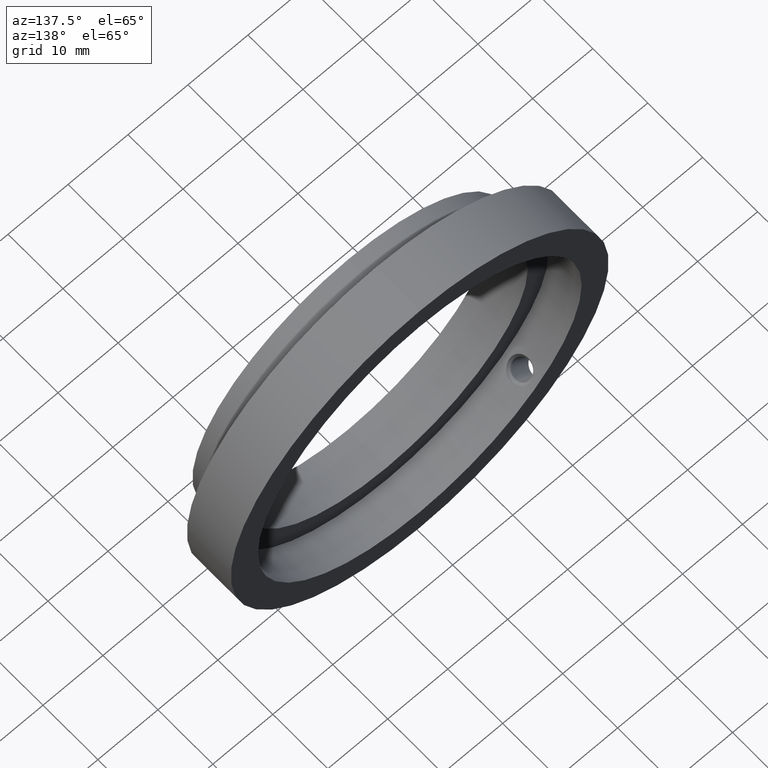
[diagram: clean part render]
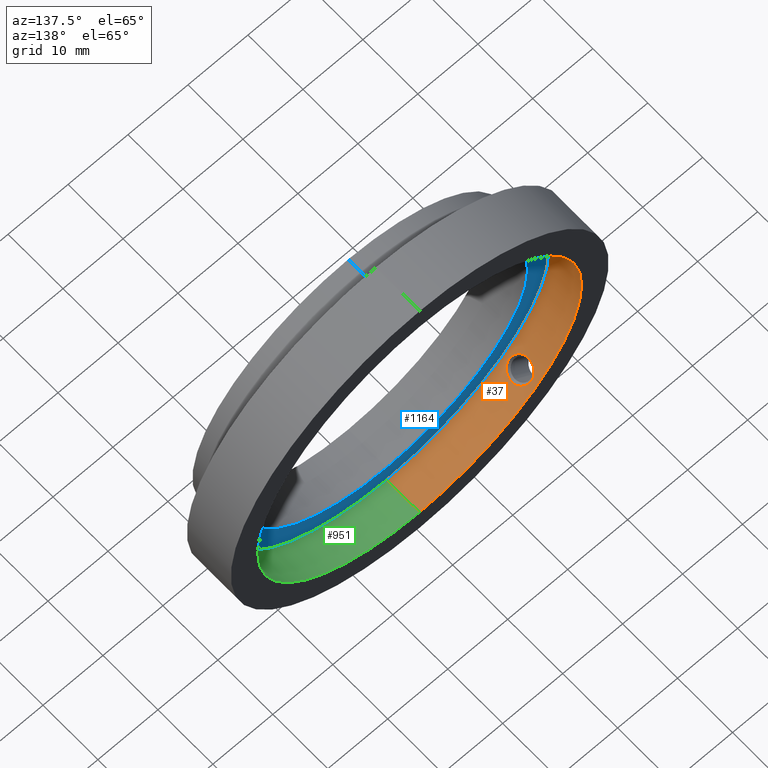
[diagram: same view with three faces highlighted in distinct colors, each labeled with its STEP entity id]
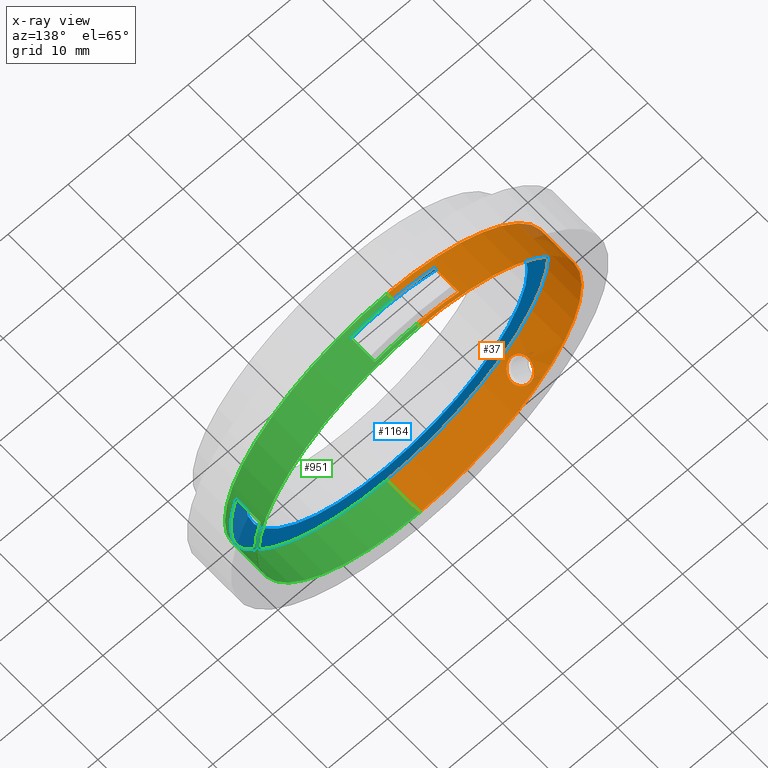
[diagram: x-ray of the same camera — body ghosted, the three highlighted faces saturated]
A machine part, auxiliary view with three faces highlighted in distinct colors.
The next image is the same camera in x-ray (body ghosted, the three faces saturated) — at least one of them is partly hidden behind the body in this view.
Their STEP definitions:

[orange] entity #37 — the highlighted cylindrical surface (partial cylindrical patch) has radius 27 mm, axis along (-0, -1, -0).
#10 = EDGE_CURVE ( 'NONE', #1100, #213, #482, .T. ) ;
#14 = CARTESIAN_POINT ( 'NONE',  ( -18.43756273570379600, -0.3413522826750845500, -19.72473102053701100 ) ) ;
#15 = CARTESIAN_POINT ( 'NONE',  ( -19.61499938240274300, -1.028278688524597600, -18.55450657526573000 ) ) ;
#19 = ORIENTED_EDGE ( 'NONE', *, *, #530, .T. ) ;
#37 = ADVANCED_FACE ( 'NONE', ( #643, #404 ), #783, .F. ) ;
#69 = CIRCLE ( 'NONE', #206, 27.00000000000000000 ) ;
#82 = CARTESIAN_POINT ( 'NONE',  ( -20.42272245516496600, 2.522885470051783800, -17.66129570103324300 ) ) ;
#93 = EDGE_LOOP ( 'NONE', ( #671, #194, #19 ) ) ;
#94 = CARTESIAN_POINT ( 'NONE',  ( -18.14581956868406500, 1.649839809700635900, -19.99329457327145200 ) ) ;
#98 = LINE ( 'NONE', #753, #429 ) ;
#100 = CARTESIAN_POINT ( 'NONE',  ( -19.88129231376597200, -0.9636634440262563700, -18.26885262491438400 ) ) ;
#101 = CARTESIAN_POINT ( 'NONE',  ( -18.07851186811486600, 0.7312749591979561500, -20.05412858065140800 ) ) ;
#104 = CARTESIAN_POINT ( 'NONE',  ( -18.64754504214145900, -0.6118819902721985800, -19.52642533546312000 ) ) ;
#105 = VERTEX_POINT ( 'NONE', #889 ) ;
#108 = CARTESIAN_POINT ( 'NONE',  ( -20.80066380358232400, 1.648354821357099300, -17.21438270783437500 ) ) ;
#142 = ORIENTED_EDGE ( 'NONE', *, *, #280, .T. ) ;
#143 = DIRECTION ( 'NONE',  ( -0.0000000000000000000, -1.000000000000000000, -0.0000000000000000000 ) ) ;
#163 = CARTESIAN_POINT ( 'NONE',  ( -20.54604222648775300, 2.333781464301626600, -17.51767984487150900 ) ) ;
#168 = CARTESIAN_POINT ( 'NONE',  ( -20.20973129145297900, -0.7608039659778265100, -17.90471707675759600 ) ) ;
#173 = VERTEX_POINT ( 'NONE', #505 ) ;
#188 = CARTESIAN_POINT ( 'NONE',  ( -18.89131997628609500, -0.8228567284003703900, -19.29074537372459700 ) ) ;
#190 = CARTESIAN_POINT ( 'NONE',  ( -19.88242750885899900, 2.956681655342698900, -18.26761957178829500 ) ) ;
#194 = ORIENTED_EDGE ( 'NONE', *, *, #1135, .T. ) ;
#202 = CARTESIAN_POINT ( 'NONE',  ( -18.07849138964781900, 1.262043023565867500, -20.05414708760055800 ) ) ;
#206 = AXIS2_PLACEMENT_3D ( 'NONE', #806, #885, #324 ) ;
#209 = CARTESIAN_POINT ( 'NONE',  ( 3.306546357697853700E-015, -2.003278688524599000, 27.00000000000000000 ) ) ;
#211 = CARTESIAN_POINT ( 'NONE',  ( -6.995128393389915500, 3.496721311475398800, 26.07811685609200900 ) ) ;
#213 = VERTEX_POINT ( 'NONE', #966 ) ;
#241 = DIRECTION ( 'NONE',  ( 0.0000000000000000000, 0.0000000000000000000, -1.000000000000000000 ) ) ;
#246 = CIRCLE ( 'NONE', #764, 27.00000000000000000 ) ;
#257 = CARTESIAN_POINT ( 'NONE',  ( -20.42346485706337900, -0.5283028989654656700, -17.66043105384924100 ) ) ;
#260 = VERTEX_POINT ( 'NONE', #503 ) ;
#268 = CARTESIAN_POINT ( 'NONE',  ( -18.26692766306743800, -0.01729834514992693200, -19.88277537441360800 ) ) ;
#276 = CIRCLE ( 'NONE', #928, 27.00000000000000000 ) ;
#278 = CARTESIAN_POINT ( 'NONE',  ( -19.96762165828922900, 2.918388486661437600, -18.17440912233346100 ) ) ;
#279 = DIRECTION ( 'NONE',  ( -0.0000000000000000000, -1.000000000000000000, -0.0000000000000000000 ) ) ;
#280 = EDGE_CURVE ( 'NONE', #715, #260, #477, .T. ) ;
#287 = CARTESIAN_POINT ( 'NONE',  ( 3.306546357697853700E-015, -1.003278688524599900, 27.00000000000000000 ) ) ;
#300 = DIRECTION ( 'NONE',  ( 0.0000000000000000000, 1.000000000000000000, 0.0000000000000000000 ) ) ;
#324 = DIRECTION ( 'NONE',  ( -1.000000000000000000, 0.0000000000000000000, -3.491481338843133400E-015 ) ) ;
#327 = DIRECTION ( 'NONE',  ( -0.0000000000000000000, -1.000000000000000000, -0.0000000000000000000 ) ) ;
#338 = DIRECTION ( 'NONE',  ( -0.0000000000000000000, -1.000000000000000000, -0.0000000000000000000 ) ) ;
#351 = DIRECTION ( 'NONE',  ( -0.0000000000000000000, -1.000000000000000000, -0.0000000000000000000 ) ) ;
#372 = CARTESIAN_POINT ( 'NONE',  ( -18.80682450981193200, -0.7598220626269139900, -19.37306311188933700 ) ) ;
#404 = FACE_OUTER_BOUND ( 'NONE', #714, .T. ) ;
#411 = CARTESIAN_POINT ( 'NONE',  ( -6.995128393389916400, 0.0000000000000000000, 26.07811685609201300 ) ) ;
#429 = VECTOR ( 'NONE', #1141, 1000.000000000000000 ) ;
#440 = ORIENTED_EDGE ( 'NONE', *, *, #10, .T. ) ;
#450 = CARTESIAN_POINT ( 'NONE',  ( 0.0000000000000000000, 0.0000000000000000000, -27.00000000000000000 ) ) ;
#454 = CARTESIAN_POINT ( 'NONE',  ( -20.35558628879571700, 2.606710642768852400, -17.73871896068675700 ) ) ;
#460 = VERTEX_POINT ( 'NONE', #1205 ) ;
#462 = CARTESIAN_POINT ( 'NONE',  ( -18.11677156262725700, 0.4726023424466318000, -20.01957173973633200 ) ) ;
#464 = B_SPLINE_CURVE_WITH_KNOTS ( 'NONE', 3,
 ( #1031, #15, #1002, #100, #838, #723, #168, #480, #257, #474, #745, #540, #1033, #665, #1109, #912, #108, #752, #934, #1104, #163, #82, #454, #813, #659, #278, #190, #551, #749, #1125 ),
 .UNSPECIFIED., .F., .F.,
 ( 4, 2, 2, 2, 2, 2, 2, 2, 2, 2, 2, 2, 2, 2, 4 ),
 ( 0.0000000000000000000, 0.0003958309842034941600, 0.0007916619684069883200, 0.001187492952610482300, 0.001583323936813976600, 0.002374985905220969800, 0.003166647873627962800, 0.003562478857831459500, 0.003958309842034956700, 0.004354140826238452900, 0.004749971810441949200, 0.005145802794645445500, 0.005541633778848941700, 0.005937464763052438000, 0.006333295747255934300 ),
 .UNSPECIFIED. ) ;
#467 = AXIS2_PLACEMENT_3D ( 'NONE', #893, #327, #1176 ) ;
#468 = B_SPLINE_CURVE_WITH_KNOTS ( 'NONE', 3,
 ( #832, #747, #101, #462, #1120, #1117, #268, #922, #14, #652, #104, #372, #188, #562, #653, #557 ),
 .UNSPECIFIED., .F., .F.,
 ( 4, 2, 2, 2, 2, 2, 2, 4 ),
 ( 0.009500814466999022600, 0.009896353985993835300, 0.01029189350498864800, 0.01068743302398346100, 0.01108297254297827300, 0.01147851206197308600, 0.01187405158096790100, 0.01266513061895752600 ),
 .UNSPECIFIED. ) ;
#474 = CARTESIAN_POINT ( 'NONE',  ( -20.60619522066838300, -0.2481006047059144100, -17.44762693404365800 ) ) ;
#477 = LINE ( 'NONE', #411, #848 ) ;
#480 = CARTESIAN_POINT ( 'NONE',  ( -20.35514209676983200, -0.6138226320697903700, -17.73923117532936200 ) ) ;
#482 = CIRCLE ( 'NONE', #467, 27.00000000000000000 ) ;
#503 = CARTESIAN_POINT ( 'NONE',  ( -6.995128393389915500, -1.003278688524599900, 26.07811685609200900 ) ) ;
#505 = CARTESIAN_POINT ( 'NONE',  ( -19.52253942350209900, 3.021721311475400000, -18.65128559799045100 ) ) ;
#528 = DIRECTION ( 'NONE',  ( 0.0000000000000000000, 0.0000000000000000000, -1.000000000000000000 ) ) ;
#530 = EDGE_CURVE ( 'NONE', #105, #798, #468, .T. ) ;
#539 = EDGE_CURVE ( 'NONE', #697, #1100, #748, .T. ) ;
#540 = CARTESIAN_POINT ( 'NONE',  ( -20.83258733153620700, 0.4651580394335725900, -17.17595855673281600 ) ) ;
#551 = CARTESIAN_POINT ( 'NONE',  ( -19.70587056149852100, 3.008473844565641400, -18.45793904741485400 ) ) ;
#557 = CARTESIAN_POINT ( 'NONE',  ( -19.52253942350209900, -1.028278688524598000, -18.65128559799045100 ) ) ;
#562 = CARTESIAN_POINT ( 'NONE',  ( -19.15116212286357100, -0.9745094618251216600, -19.03397749880483800 ) ) ;
#566 = CARTESIAN_POINT ( 'NONE',  ( -18.11680406037170200, 1.521046178321012700, -20.01954237675743500 ) ) ;
#587 = CARTESIAN_POINT ( 'NONE',  ( -18.64247673037171200, 2.615758134180294500, -19.53184744298808100 ) ) ;
#589 = VECTOR ( 'NONE', #279, 1000.000000000000000 ) ;
#593 = CARTESIAN_POINT ( 'NONE',  ( -18.22114349694770400, 1.894970198810651100, -19.92467127398803900 ) ) ;
#601 = VERTEX_POINT ( 'NONE', #768 ) ;
#603 = CARTESIAN_POINT ( 'NONE',  ( -18.06870843042708300, 0.9967213114754008800, -20.06294533851431400 ) ) ;
#643 = FACE_BOUND ( 'NONE', #93, .T. ) ;
#645 = ORIENTED_EDGE ( 'NONE', *, *, #1161, .F. ) ;
#652 = CARTESIAN_POINT ( 'NONE',  ( -18.57366271186960200, -0.5281095836508068500, -19.59662692738863000 ) ) ;
#653 = CARTESIAN_POINT ( 'NONE',  ( -19.33775566917609000, -1.028278688524598900, -18.84470111938704700 ) ) ;
#659 = CARTESIAN_POINT ( 'NONE',  ( -20.13201315993424200, 2.816759742194713000, -17.99214016627188100 ) ) ;
#665 = CARTESIAN_POINT ( 'NONE',  ( -20.86643138693923300, 1.128123300741518600, -17.13452774885909600 ) ) ;
#667 = CARTESIAN_POINT ( 'NONE',  ( -19.33986552271570500, 3.021721311475400500, -18.84249270867517700 ) ) ;
#671 = ORIENTED_EDGE ( 'NONE', *, *, #942, .T. ) ;
#678 = DIRECTION ( 'NONE',  ( -0.0000000000000000000, -1.000000000000000000, -0.0000000000000000000 ) ) ;
#691 = AXIS2_PLACEMENT_3D ( 'NONE', #1189, #143, #528 ) ;
#695 = EDGE_CURVE ( 'NONE', #460, #1010, #98, .T. ) ;
#697 = VERTEX_POINT ( 'NONE', #287 ) ;
#714 = EDGE_LOOP ( 'NONE', ( #645, #1170, #902, #142, #1204, #839, #440, #1006 ) ) ;
#715 = VERTEX_POINT ( 'NONE', #211 ) ;
#719 = CARTESIAN_POINT ( 'NONE',  ( -19.52253942350209900, -1.028278688524598000, -18.65128559799045100 ) ) ;
#723 = CARTESIAN_POINT ( 'NONE',  ( -20.13241091991258400, -0.8230193167466646200, -17.99169468231389500 ) ) ;
#745 = CARTESIAN_POINT ( 'NONE',  ( -20.70321077040078700, -0.02221168100783447000, -17.33168517672321900 ) ) ;
#747 = CARTESIAN_POINT ( 'NONE',  ( -18.06870843042708000, 0.8631151499794090800, -20.06294533851431400 ) ) ;
#748 = LINE ( 'NONE', #1211, #589 ) ;
#749 = CARTESIAN_POINT ( 'NONE',  ( -19.61385126262195700, 3.021721311475400500, -18.55570832693941000 ) ) ;
#752 = CARTESIAN_POINT ( 'NONE',  ( -20.73566355796944500, 1.893588790233714100, -17.29262396202916100 ) ) ;
#753 = CARTESIAN_POINT ( 'NONE',  ( 3.306546357697853700E-015, 0.0000000000000000000, 27.00000000000000000 ) ) ;
#757 = CARTESIAN_POINT ( 'NONE',  ( -18.80578107394549300, 2.766652404145690400, -19.37529582283009700 ) ) ;
#764 = AXIS2_PLACEMENT_3D ( 'NONE', #766, #300, #1148 ) ;
#766 = CARTESIAN_POINT ( 'NONE',  ( 0.0000000000000000000, 3.496721311475398800, 0.0000000000000000000 ) ) ;
#768 = CARTESIAN_POINT ( 'NONE',  ( 0.0000000000000000000, 3.996721311475401000, -27.00000000000000000 ) ) ;
#772 = CARTESIAN_POINT ( 'NONE',  ( -18.43813052243212200, 2.335683822374843300, -19.72420070959554600 ) ) ;
#783 = CYLINDRICAL_SURFACE ( 'NONE', #691, 27.00000000000000000 ) ;
#798 = VERTEX_POINT ( 'NONE', #719 ) ;
#806 = CARTESIAN_POINT ( 'NONE',  ( -0.0000000000000000000, -1.003278688524599900, 0.0000000000000000000 ) ) ;
#813 = CARTESIAN_POINT ( 'NONE',  ( -20.21071608650700900, 2.753355743634601000, -17.90360295575844100 ) ) ;
#828 = B_SPLINE_CURVE_WITH_KNOTS ( 'NONE', 3,
 ( #943, #667, #946, #757, #587, #772, #937, #1151, #593, #94, #566, #202, #847, #603 ),
 .UNSPECIFIED., .F., .F.,
 ( 4, 2, 2, 2, 2, 2, 4 ),
 ( 0.006333295747255934300, 0.007125175427191701400, 0.007917055107127467600, 0.008312994947095355900, 0.008708934787063245900, 0.009104874627031134300, 0.009500814466999022600 ),
 .UNSPECIFIED. ) ;
#832 = CARTESIAN_POINT ( 'NONE',  ( -18.06870843042708300, 0.9967213114754008800, -20.06294533851431400 ) ) ;
#834 = VECTOR ( 'NONE', #351, 1000.000000000000000 ) ;
#838 = CARTESIAN_POINT ( 'NONE',  ( -19.96810379059363100, -0.9246994293500754300, -18.17387900251067000 ) ) ;
#839 = ORIENTED_EDGE ( 'NONE', *, *, #539, .T. ) ;
#842 = EDGE_CURVE ( 'NONE', #260, #697, #69, .T. ) ;
#847 = CARTESIAN_POINT ( 'NONE',  ( -18.06870843042708000, 1.130462694222394300, -20.06294533851431800 ) ) ;
#848 = VECTOR ( 'NONE', #678, 1000.000000000000000 ) ;
#885 = DIRECTION ( 'NONE',  ( 0.0000000000000000000, 1.000000000000000000, 0.0000000000000000000 ) ) ;
#889 = CARTESIAN_POINT ( 'NONE',  ( -18.06870843042708300, 0.9967213114754008800, -20.06294533851431400 ) ) ;
#893 = CARTESIAN_POINT ( 'NONE',  ( 0.0000000000000000000, -2.003278688524599000, 0.0000000000000000000 ) ) ;
#902 = ORIENTED_EDGE ( 'NONE', *, *, #1122, .F. ) ;
#911 = CARTESIAN_POINT ( 'NONE',  ( 0.0000000000000000000, 3.996721311475401000, 0.0000000000000000000 ) ) ;
#912 = CARTESIAN_POINT ( 'NONE',  ( -20.82507541172423500, 1.522096483793736100, -17.18478707200409500 ) ) ;
#921 = EDGE_CURVE ( 'NONE', #601, #213, #1209, .T. ) ;
#922 = CARTESIAN_POINT ( 'NONE',  ( -18.37491264763479700, -0.2371842641395676400, -19.78302272224640700 ) ) ;
#928 = AXIS2_PLACEMENT_3D ( 'NONE', #911, #338, #241 ) ;
#934 = CARTESIAN_POINT ( 'NONE',  ( -20.69493833583228300, 2.012119470280787900, -17.34142213031235300 ) ) ;
#937 = CARTESIAN_POINT ( 'NONE',  ( -18.37540391197951100, 2.231526268789886500, -19.78256710426321900 ) ) ;
#942 = EDGE_CURVE ( 'NONE', #798, #173, #464, .T. ) ;
#943 = CARTESIAN_POINT ( 'NONE',  ( -19.52253942350209900, 3.021721311475400000, -18.65128559799045100 ) ) ;
#946 = CARTESIAN_POINT ( 'NONE',  ( -19.15273875859533000, 2.968593669802837000, -19.03239575219956200 ) ) ;
#966 = CARTESIAN_POINT ( 'NONE',  ( 0.0000000000000000000, -2.003278688524599000, -27.00000000000000000 ) ) ;
#1002 = CARTESIAN_POINT ( 'NONE',  ( -19.70518854340139800, -1.015138933115207400, -18.45866476116985700 ) ) ;
#1006 = ORIENTED_EDGE ( 'NONE', *, *, #921, .F. ) ;
#1010 = VERTEX_POINT ( 'NONE', #1145 ) ;
#1031 = CARTESIAN_POINT ( 'NONE',  ( -19.52253942350209900, -1.028278688524598000, -18.65128559799045100 ) ) ;
#1033 = CARTESIAN_POINT ( 'NONE',  ( -20.86634078715629700, 0.7317355128508303800, -17.13463808089673500 ) ) ;
#1100 = VERTEX_POINT ( 'NONE', #209 ) ;
#1104 = CARTESIAN_POINT ( 'NONE',  ( -20.60028850984215500, 2.231511093704258400, -17.45375339395091900 ) ) ;
#1109 = CARTESIAN_POINT ( 'NONE',  ( -20.85805059007060800, 1.262335204627813100, -17.14474841449054300 ) ) ;
#1117 = CARTESIAN_POINT ( 'NONE',  ( -18.22096878731998600, 0.09894327234351511800, -19.92483100686812100 ) ) ;
#1120 = CARTESIAN_POINT ( 'NONE',  ( -18.14566623800540400, 0.3441999493283491900, -19.99343369658282300 ) ) ;
#1122 = EDGE_CURVE ( 'NONE', #715, #1010, #246, .T. ) ;
#1125 = CARTESIAN_POINT ( 'NONE',  ( -19.52253942350209900, 3.021721311475400000, -18.65128559799045100 ) ) ;
#1135 = EDGE_CURVE ( 'NONE', #173, #105, #828, .T. ) ;
#1141 = DIRECTION ( 'NONE',  ( -0.0000000000000000000, -1.000000000000000000, -0.0000000000000000000 ) ) ;
#1145 = CARTESIAN_POINT ( 'NONE',  ( 3.306546357697853700E-015, 3.496721311475398800, 27.00000000000000000 ) ) ;
#1148 = DIRECTION ( 'NONE',  ( -1.000000000000000000, 0.0000000000000000000, -3.491481338843133400E-015 ) ) ;
#1151 = CARTESIAN_POINT ( 'NONE',  ( -18.26714798793723200, 2.011289908103309100, -19.88257363999616700 ) ) ;
#1161 = EDGE_CURVE ( 'NONE', #460, #601, #276, .T. ) ;
#1170 = ORIENTED_EDGE ( 'NONE', *, *, #695, .T. ) ;
#1176 = DIRECTION ( 'NONE',  ( 0.0000000000000000000, 0.0000000000000000000, -1.000000000000000000 ) ) ;
#1189 = CARTESIAN_POINT ( 'NONE',  ( 0.0000000000000000000, 0.0000000000000000000, 0.0000000000000000000 ) ) ;
#1204 = ORIENTED_EDGE ( 'NONE', *, *, #842, .T. ) ;
#1205 = CARTESIAN_POINT ( 'NONE',  ( 3.306546357697853700E-015, 3.996721311475401000, 27.00000000000000000 ) ) ;
#1209 = LINE ( 'NONE', #450, #834 ) ;
#1211 = CARTESIAN_POINT ( 'NONE',  ( 3.306546357697853700E-015, 0.0000000000000000000, 27.00000000000000000 ) ) ;

[blue] entity #1164 — the highlighted planar face has unit normal (0, -1, -0).
#10 = EDGE_CURVE ( 'NONE', #1100, #213, #482, .T. ) ;
#39 = CIRCLE ( 'NONE', #830, 23.49999999999999600 ) ;
#97 = CIRCLE ( 'NONE', #550, 27.00000000000000000 ) ;
#124 = DIRECTION ( 'NONE',  ( -0.0000000000000000000, -1.000000000000000000, -0.0000000000000000000 ) ) ;
#204 = CARTESIAN_POINT ( 'NONE',  ( 0.0000000000000000000, -2.003278688524599000, 0.0000000000000000000 ) ) ;
#209 = CARTESIAN_POINT ( 'NONE',  ( 3.306546357697853700E-015, -2.003278688524599000, 27.00000000000000000 ) ) ;
#213 = VERTEX_POINT ( 'NONE', #966 ) ;
#262 = DIRECTION ( 'NONE',  ( 0.0000000000000000000, -1.000000000000000000, -0.0000000000000000000 ) ) ;
#270 = ORIENTED_EDGE ( 'NONE', *, *, #10, .F. ) ;
#290 = DIRECTION ( 'NONE',  ( -0.0000000000000000000, -1.000000000000000000, -0.0000000000000000000 ) ) ;
#293 = DIRECTION ( 'NONE',  ( -0.0000000000000000000, -1.000000000000000000, -0.0000000000000000000 ) ) ;
#302 = VERTEX_POINT ( 'NONE', #778 ) ;
#327 = DIRECTION ( 'NONE',  ( -0.0000000000000000000, -1.000000000000000000, -0.0000000000000000000 ) ) ;
#348 = EDGE_LOOP ( 'NONE', ( #498, #270 ) ) ;
#364 = VERTEX_POINT ( 'NONE', #709 ) ;
#397 = DIRECTION ( 'NONE',  ( 0.0000000000000000000, 0.0000000000000000000, -1.000000000000000000 ) ) ;
#416 = CARTESIAN_POINT ( 'NONE',  ( 0.0000000000000000000, -2.003278688524599000, 0.0000000000000000000 ) ) ;
#467 = AXIS2_PLACEMENT_3D ( 'NONE', #893, #327, #1176 ) ;
#482 = CIRCLE ( 'NONE', #467, 27.00000000000000000 ) ;
#498 = ORIENTED_EDGE ( 'NONE', *, *, #722, .F. ) ;
#550 = AXIS2_PLACEMENT_3D ( 'NONE', #416, #124, #1073 ) ;
#662 = FACE_OUTER_BOUND ( 'NONE', #348, .T. ) ;
#663 = AXIS2_PLACEMENT_3D ( 'NONE', #1049, #290, #397 ) ;
#709 = CARTESIAN_POINT ( 'NONE',  ( 0.0000000000000000000, -2.003278688524599000, -23.49999999999999600 ) ) ;
#722 = EDGE_CURVE ( 'NONE', #213, #1100, #97, .T. ) ;
#756 = ORIENTED_EDGE ( 'NONE', *, *, #983, .T. ) ;
#778 = CARTESIAN_POINT ( 'NONE',  ( 2.877919977996279500E-015, -2.003278688524599000, 23.49999999999999600 ) ) ;
#830 = AXIS2_PLACEMENT_3D ( 'NONE', #204, #293, #861 ) ;
#861 = DIRECTION ( 'NONE',  ( 0.0000000000000000000, 0.0000000000000000000, -1.000000000000000000 ) ) ;
#886 = EDGE_LOOP ( 'NONE', ( #756, #1080 ) ) ;
#893 = CARTESIAN_POINT ( 'NONE',  ( 0.0000000000000000000, -2.003278688524599000, 0.0000000000000000000 ) ) ;
#931 = CIRCLE ( 'NONE', #663, 23.49999999999999600 ) ;
#966 = CARTESIAN_POINT ( 'NONE',  ( 0.0000000000000000000, -2.003278688524599000, -27.00000000000000000 ) ) ;
#983 = EDGE_CURVE ( 'NONE', #364, #302, #931, .T. ) ;
#1014 = CARTESIAN_POINT ( 'NONE',  ( -23.49999999999999600, -2.003278688524599000, 0.0000000000000000000 ) ) ;
#1049 = CARTESIAN_POINT ( 'NONE',  ( 0.0000000000000000000, -2.003278688524599000, 0.0000000000000000000 ) ) ;
#1063 = AXIS2_PLACEMENT_3D ( 'NONE', #1014, #262, #1187 ) ;
#1073 = DIRECTION ( 'NONE',  ( 0.0000000000000000000, 0.0000000000000000000, -1.000000000000000000 ) ) ;
#1080 = ORIENTED_EDGE ( 'NONE', *, *, #1094, .T. ) ;
#1094 = EDGE_CURVE ( 'NONE', #302, #364, #39, .T. ) ;
#1100 = VERTEX_POINT ( 'NONE', #209 ) ;
#1164 = ADVANCED_FACE ( 'NONE', ( #662, #1192 ), #1201, .F. ) ;
#1176 = DIRECTION ( 'NONE',  ( 0.0000000000000000000, 0.0000000000000000000, -1.000000000000000000 ) ) ;
#1187 = DIRECTION ( 'NONE',  ( 0.0000000000000000000, 0.0000000000000000000, -1.000000000000000000 ) ) ;
#1192 = FACE_BOUND ( 'NONE', #886, .T. ) ;
#1201 = PLANE ( 'NONE',  #1063 ) ;

[green] entity #951 — the highlighted cylindrical surface (partial cylindrical patch) has radius 27 mm, axis along (-0, -1, -0).
#3 = ORIENTED_EDGE ( 'NONE', *, *, #1188, .T. ) ;
#6 = DIRECTION ( 'NONE',  ( -0.0000000000000000000, -1.000000000000000000, -0.0000000000000000000 ) ) ;
#31 = ORIENTED_EDGE ( 'NONE', *, *, #491, .F. ) ;
#44 = CARTESIAN_POINT ( 'NONE',  ( 26.07811685609203400, 3.496721311475398800, -6.995128393389825000 ) ) ;
#60 = VERTEX_POINT ( 'NONE', #242 ) ;
#72 = DIRECTION ( 'NONE',  ( -0.0000000000000000000, 1.000000000000000000, -0.0000000000000000000 ) ) ;
#73 = EDGE_CURVE ( 'NONE', #106, #60, #967, .T. ) ;
#97 = CIRCLE ( 'NONE', #550, 27.00000000000000000 ) ;
#98 = LINE ( 'NONE', #753, #429 ) ;
#106 = VERTEX_POINT ( 'NONE', #523 ) ;
#124 = DIRECTION ( 'NONE',  ( -0.0000000000000000000, -1.000000000000000000, -0.0000000000000000000 ) ) ;
#162 = LINE ( 'NONE', #442, #800 ) ;
#165 = DIRECTION ( 'NONE',  ( 0.0000000000000000000, 0.0000000000000000000, 1.000000000000000000 ) ) ;
#172 = EDGE_CURVE ( 'NONE', #601, #460, #820, .T. ) ;
#205 = DIRECTION ( 'NONE',  ( 0.0000000000000000000, 1.000000000000000000, 0.0000000000000000000 ) ) ;
#209 = CARTESIAN_POINT ( 'NONE',  ( 3.306546357697853700E-015, -2.003278688524599000, 27.00000000000000000 ) ) ;
#213 = VERTEX_POINT ( 'NONE', #966 ) ;
#224 = VERTEX_POINT ( 'NONE', #44 ) ;
#242 = CARTESIAN_POINT ( 'NONE',  ( 6.995128393389733500, 3.496721311475398800, 26.07811685609205900 ) ) ;
#243 = ORIENTED_EDGE ( 'NONE', *, *, #759, .T. ) ;
#261 = DIRECTION ( 'NONE',  ( 0.0000000000000000000, 0.0000000000000000000, 1.000000000000000000 ) ) ;
#279 = DIRECTION ( 'NONE',  ( -0.0000000000000000000, -1.000000000000000000, -0.0000000000000000000 ) ) ;
#286 = ORIENTED_EDGE ( 'NONE', *, *, #316, .F. ) ;
#287 = CARTESIAN_POINT ( 'NONE',  ( 3.306546357697853700E-015, -1.003278688524599900, 27.00000000000000000 ) ) ;
#301 = CARTESIAN_POINT ( 'NONE',  ( -0.0000000000000000000, -1.003278688524599900, 0.0000000000000000000 ) ) ;
#313 = DIRECTION ( 'NONE',  ( 0.0000000000000000000, 0.0000000000000000000, -1.000000000000000000 ) ) ;
#314 = ORIENTED_EDGE ( 'NONE', *, *, #613, .T. ) ;
#316 = EDGE_CURVE ( 'NONE', #1010, #60, #565, .T. ) ;
#340 = DIRECTION ( 'NONE',  ( -0.0000000000000000000, 1.000000000000000000, -0.0000000000000000000 ) ) ;
#351 = DIRECTION ( 'NONE',  ( -0.0000000000000000000, -1.000000000000000000, -0.0000000000000000000 ) ) ;
#355 = CIRCLE ( 'NONE', #1111, 27.00000000000000000 ) ;
#356 = AXIS2_PLACEMENT_3D ( 'NONE', #301, #205, #1132 ) ;
#368 = VECTOR ( 'NONE', #1057, 1000.000000000000000 ) ;
#405 = ORIENTED_EDGE ( 'NONE', *, *, #172, .F. ) ;
#416 = CARTESIAN_POINT ( 'NONE',  ( 0.0000000000000000000, -2.003278688524599000, 0.0000000000000000000 ) ) ;
#427 = EDGE_CURVE ( 'NONE', #545, #1138, #1059, .T. ) ;
#429 = VECTOR ( 'NONE', #1141, 1000.000000000000000 ) ;
#442 = CARTESIAN_POINT ( 'NONE',  ( 26.07811685609203400, 0.0000000000000000000, -6.995128393389825000 ) ) ;
#450 = CARTESIAN_POINT ( 'NONE',  ( 0.0000000000000000000, 0.0000000000000000000, -27.00000000000000000 ) ) ;
#460 = VERTEX_POINT ( 'NONE', #1205 ) ;
#475 = FACE_OUTER_BOUND ( 'NONE', #755, .T. ) ;
#489 = CIRCLE ( 'NONE', #356, 27.00000000000000000 ) ;
#491 = EDGE_CURVE ( 'NONE', #853, #224, #355, .T. ) ;
#492 = DIRECTION ( 'NONE',  ( -1.000000000000000000, 0.0000000000000000000, -3.491481338843133400E-015 ) ) ;
#523 = CARTESIAN_POINT ( 'NONE',  ( 6.995128393389733500, -1.003278688524599900, 26.07811685609205900 ) ) ;
#539 = EDGE_CURVE ( 'NONE', #697, #1100, #748, .T. ) ;
#545 = VERTEX_POINT ( 'NONE', #1023 ) ;
#547 = CARTESIAN_POINT ( 'NONE',  ( 0.0000000000000000000, -1.003278688524599900, 0.0000000000000000000 ) ) ;
#550 = AXIS2_PLACEMENT_3D ( 'NONE', #416, #124, #1073 ) ;
#564 = CYLINDRICAL_SURFACE ( 'NONE', #998, 27.00000000000000000 ) ;
#565 = CIRCLE ( 'NONE', #873, 27.00000000000000000 ) ;
#589 = VECTOR ( 'NONE', #279, 1000.000000000000000 ) ;
#601 = VERTEX_POINT ( 'NONE', #768 ) ;
#613 = EDGE_CURVE ( 'NONE', #697, #106, #489, .T. ) ;
#619 = LINE ( 'NONE', #1165, #368 ) ;
#637 = DIRECTION ( 'NONE',  ( 0.0000000000000000000, 1.000000000000000000, 0.0000000000000000000 ) ) ;
#695 = EDGE_CURVE ( 'NONE', #460, #1010, #98, .T. ) ;
#697 = VERTEX_POINT ( 'NONE', #287 ) ;
#711 = ORIENTED_EDGE ( 'NONE', *, *, #695, .F. ) ;
#722 = EDGE_CURVE ( 'NONE', #213, #1100, #97, .T. ) ;
#748 = LINE ( 'NONE', #1211, #589 ) ;
#753 = CARTESIAN_POINT ( 'NONE',  ( 3.306546357697853700E-015, 0.0000000000000000000, 27.00000000000000000 ) ) ;
#755 = EDGE_LOOP ( 'NONE', ( #711, #405, #811, #916, #989, #314, #1167, #286 ) ) ;
#759 = EDGE_CURVE ( 'NONE', #853, #545, #619, .T. ) ;
#765 = DIRECTION ( 'NONE',  ( -0.0000000000000000000, -1.000000000000000000, -0.0000000000000000000 ) ) ;
#768 = CARTESIAN_POINT ( 'NONE',  ( 0.0000000000000000000, 3.996721311475401000, -27.00000000000000000 ) ) ;
#770 = CARTESIAN_POINT ( 'NONE',  ( 0.0000000000000000000, 3.996721311475401000, 0.0000000000000000000 ) ) ;
#777 = VECTOR ( 'NONE', #1182, 1000.000000000000000 ) ;
#785 = EDGE_LOOP ( 'NONE', ( #1157, #3, #31, #243 ) ) ;
#800 = VECTOR ( 'NONE', #637, 1000.000000000000000 ) ;
#811 = ORIENTED_EDGE ( 'NONE', *, *, #921, .T. ) ;
#820 = CIRCLE ( 'NONE', #1131, 27.00000000000000000 ) ;
#834 = VECTOR ( 'NONE', #351, 1000.000000000000000 ) ;
#853 = VERTEX_POINT ( 'NONE', #987 ) ;
#867 = DIRECTION ( 'NONE',  ( 0.0000000000000000000, 1.000000000000000000, 0.0000000000000000000 ) ) ;
#873 = AXIS2_PLACEMENT_3D ( 'NONE', #1054, #867, #492 ) ;
#896 = CARTESIAN_POINT ( 'NONE',  ( 6.995128393389733500, 0.0000000000000000000, 26.07811685609205900 ) ) ;
#908 = CARTESIAN_POINT ( 'NONE',  ( 0.0000000000000000000, 0.0000000000000000000, 0.0000000000000000000 ) ) ;
#916 = ORIENTED_EDGE ( 'NONE', *, *, #722, .T. ) ;
#921 = EDGE_CURVE ( 'NONE', #601, #213, #1209, .T. ) ;
#951 = ADVANCED_FACE ( 'NONE', ( #475, #958 ), #564, .F. ) ;
#958 = FACE_BOUND ( 'NONE', #785, .T. ) ;
#966 = CARTESIAN_POINT ( 'NONE',  ( 0.0000000000000000000, -2.003278688524599000, -27.00000000000000000 ) ) ;
#967 = LINE ( 'NONE', #896, #777 ) ;
#975 = AXIS2_PLACEMENT_3D ( 'NONE', #547, #340, #261 ) ;
#987 = CARTESIAN_POINT ( 'NONE',  ( 26.07811685609203400, 3.496721311475398800, 6.995128393389825000 ) ) ;
#989 = ORIENTED_EDGE ( 'NONE', *, *, #539, .F. ) ;
#998 = AXIS2_PLACEMENT_3D ( 'NONE', #908, #6, #1199 ) ;
#1010 = VERTEX_POINT ( 'NONE', #1145 ) ;
#1023 = CARTESIAN_POINT ( 'NONE',  ( 26.07811685609203400, -1.003278688524599900, 6.995128393389825000 ) ) ;
#1054 = CARTESIAN_POINT ( 'NONE',  ( 0.0000000000000000000, 3.496721311475398800, 0.0000000000000000000 ) ) ;
#1057 = DIRECTION ( 'NONE',  ( -0.0000000000000000000, -1.000000000000000000, -0.0000000000000000000 ) ) ;
#1059 = CIRCLE ( 'NONE', #975, 27.00000000000000000 ) ;
#1073 = DIRECTION ( 'NONE',  ( 0.0000000000000000000, 0.0000000000000000000, -1.000000000000000000 ) ) ;
#1100 = VERTEX_POINT ( 'NONE', #209 ) ;
#1111 = AXIS2_PLACEMENT_3D ( 'NONE', #1195, #72, #165 ) ;
#1131 = AXIS2_PLACEMENT_3D ( 'NONE', #770, #765, #313 ) ;
#1132 = DIRECTION ( 'NONE',  ( -1.000000000000000000, 0.0000000000000000000, -3.491481338843133400E-015 ) ) ;
#1138 = VERTEX_POINT ( 'NONE', #1149 ) ;
#1141 = DIRECTION ( 'NONE',  ( -0.0000000000000000000, -1.000000000000000000, -0.0000000000000000000 ) ) ;
#1145 = CARTESIAN_POINT ( 'NONE',  ( 3.306546357697853700E-015, 3.496721311475398800, 27.00000000000000000 ) ) ;
#1149 = CARTESIAN_POINT ( 'NONE',  ( 26.07811685609203400, -1.003278688524599900, -6.995128393389825000 ) ) ;
#1157 = ORIENTED_EDGE ( 'NONE', *, *, #427, .T. ) ;
#1165 = CARTESIAN_POINT ( 'NONE',  ( 26.07811685609203400, 0.0000000000000000000, 6.995128393389825000 ) ) ;
#1167 = ORIENTED_EDGE ( 'NONE', *, *, #73, .T. ) ;
#1182 = DIRECTION ( 'NONE',  ( 0.0000000000000000000, 1.000000000000000000, 0.0000000000000000000 ) ) ;
#1188 = EDGE_CURVE ( 'NONE', #1138, #224, #162, .T. ) ;
#1195 = CARTESIAN_POINT ( 'NONE',  ( 0.0000000000000000000, 3.496721311475398800, 0.0000000000000000000 ) ) ;
#1199 = DIRECTION ( 'NONE',  ( 0.0000000000000000000, 0.0000000000000000000, -1.000000000000000000 ) ) ;
#1205 = CARTESIAN_POINT ( 'NONE',  ( 3.306546357697853700E-015, 3.996721311475401000, 27.00000000000000000 ) ) ;
#1209 = LINE ( 'NONE', #450, #834 ) ;
#1211 = CARTESIAN_POINT ( 'NONE',  ( 3.306546357697853700E-015, 0.0000000000000000000, 27.00000000000000000 ) ) ;